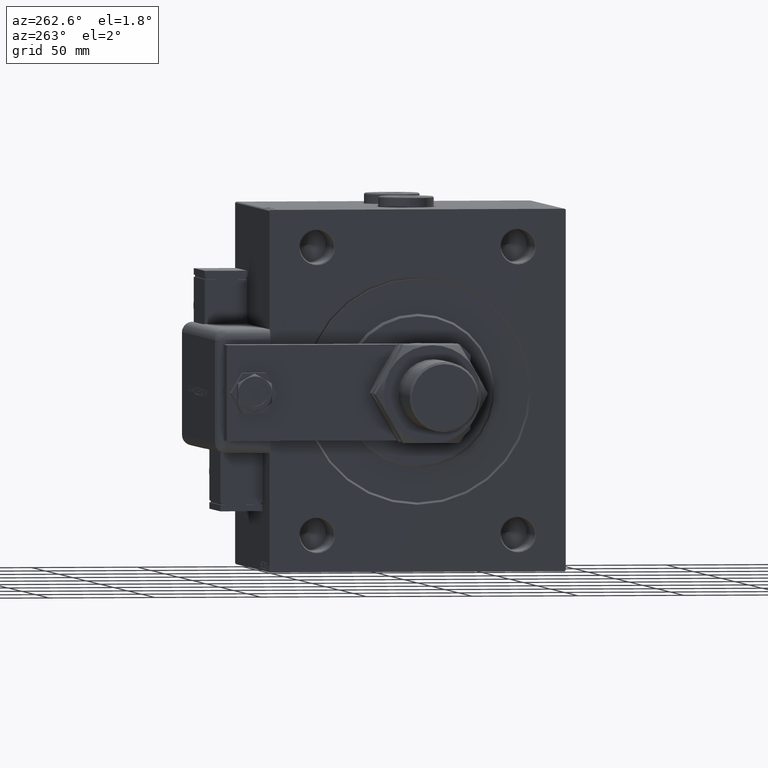
[diagram: clean part render]
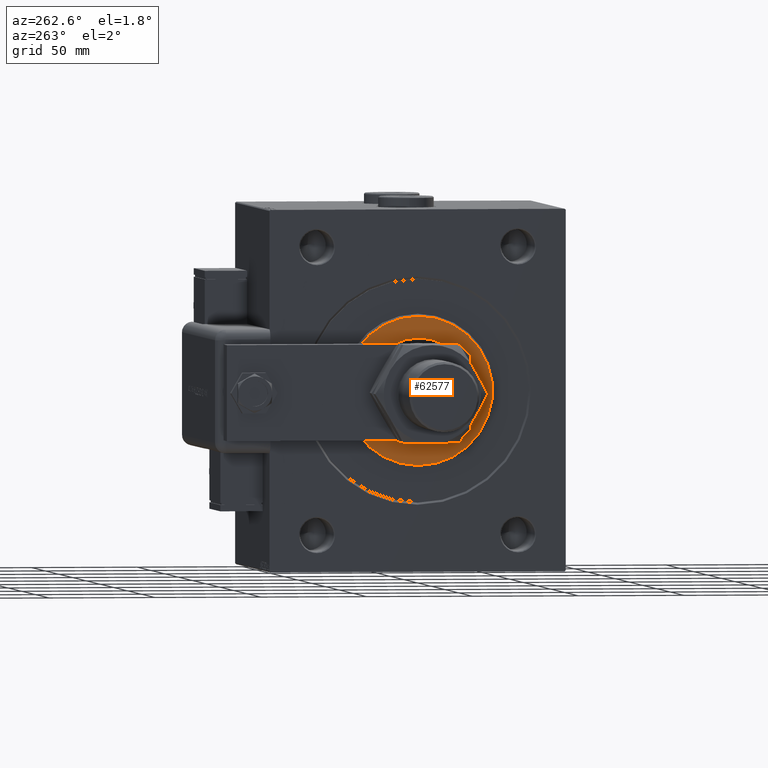
[diagram: same view with one face highlighted and labeled with its STEP entity id]
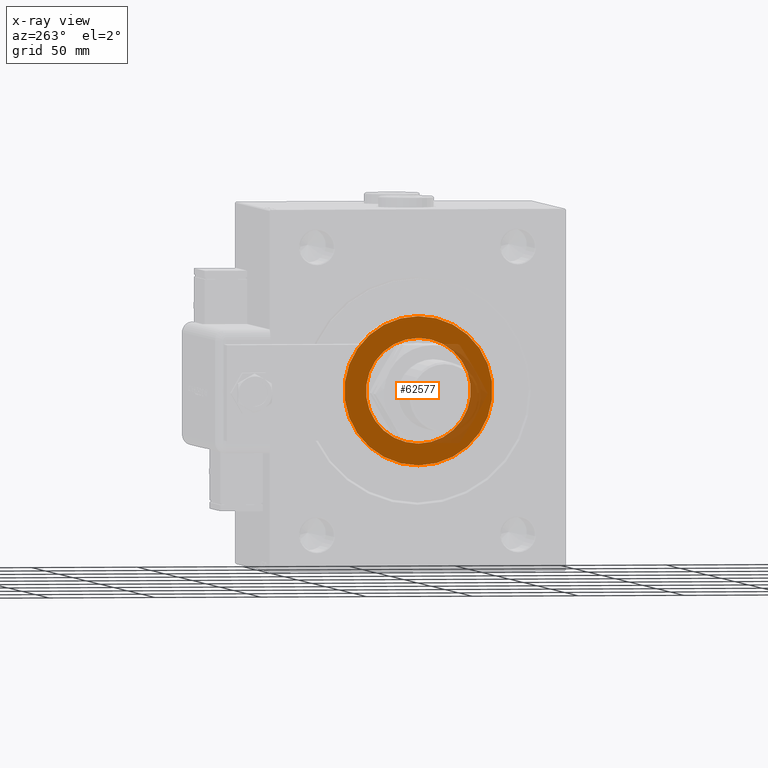
[diagram: x-ray of the same camera — body ghosted, the highlighted face saturated]
A machine part, auxiliary view. The second image highlights one B-rep face of the part: STEP entity #62577.
The next image is the same camera in x-ray: the body ghosted, the highlighted face saturated — about 15% of this face is hidden behind the body in this view.
In plain terms, the highlighted planar face has unit normal (-1, 0, 0).
Its self-contained STEP definition (entity closure, byte-faithful):
#2847 = VERTEX_POINT ( 'NONE', #5366 ) ;
#3115 = CARTESIAN_POINT ( 'NONE',  ( 3.000000000000000000, 0.000000000000000000, 0.000000000000000000 ) ) ;
#3332 = ORIENTED_EDGE ( 'NONE', *, *, #53833, .F. ) ;
#3453 = AXIS2_PLACEMENT_3D ( 'NONE', #34462, #15400, #16026 ) ;
#5124 = CARTESIAN_POINT ( 'NONE',  ( 3.000000000000000000, 3.031000827889699650E-15, 24.75000000000000355 ) ) ;
#5366 = CARTESIAN_POINT ( 'NONE',  ( 3.000000000000000000, 0.000000000000000000, 35.00000000000001421 ) ) ;
#5540 = AXIS2_PLACEMENT_3D ( 'NONE', #3115, #50501, #42214 ) ;
#10603 = VERTEX_POINT ( 'NONE', #5124 ) ;
#11687 = CARTESIAN_POINT ( 'NONE',  ( 3.000000000000000000, 4.347496136973104859E-15, -35.00000000000001421 ) ) ;
#13180 = VERTEX_POINT ( 'NONE', #50265 ) ;
#13632 = ORIENTED_EDGE ( 'NONE', *, *, #19092, .T. ) ;
#15400 = DIRECTION ( 'NONE',  ( 1.000000000000000000, 0.000000000000000000, 0.000000000000000000 ) ) ;
#16026 = DIRECTION ( 'NONE',  ( 0.000000000000000000, 0.000000000000000000, -1.000000000000000000 ) ) ;
#17931 = DIRECTION ( 'NONE',  ( 1.000000000000000000, -0.000000000000000000, 0.000000000000000000 ) ) ;
#18144 = AXIS2_PLACEMENT_3D ( 'NONE', #50585, #45831, #21650 ) ;
#19092 = EDGE_CURVE ( 'NONE', #2847, #44984, #21642, .T. ) ;
#21136 = AXIS2_PLACEMENT_3D ( 'NONE', #56298, #51822, #32120 ) ;
#21642 = CIRCLE ( 'NONE', #5540, 35.00000000000001421 ) ;
#21650 = DIRECTION ( 'NONE',  ( 0.000000000000000000, 0.000000000000000000, -1.000000000000000000 ) ) ;
#27529 = ORIENTED_EDGE ( 'NONE', *, *, #38582, .F. ) ;
#32120 = DIRECTION ( 'NONE',  ( 0.000000000000000000, 0.000000000000000000, -1.000000000000000000 ) ) ;
#33903 = EDGE_CURVE ( 'NONE', #44984, #2847, #48527, .T. ) ;
#34462 = CARTESIAN_POINT ( 'NONE',  ( 3.000000000000000000, 0.000000000000000000, 0.000000000000000000 ) ) ;
#37334 = FACE_BOUND ( 'NONE', #55882, .T. ) ;
#38582 = EDGE_CURVE ( 'NONE', #10603, #13180, #43041, .T. ) ;
#41484 = FACE_OUTER_BOUND ( 'NONE', #54869, .T. ) ;
#42106 = PLANE ( 'NONE',  #44920 ) ;
#42214 = DIRECTION ( 'NONE',  ( 0.000000000000000000, 0.000000000000000000, -1.000000000000000000 ) ) ;
#43041 = CIRCLE ( 'NONE', #3453, 24.75000000000000355 ) ;
#44920 = AXIS2_PLACEMENT_3D ( 'NONE', #61534, #17931, #56749 ) ;
#44984 = VERTEX_POINT ( 'NONE', #11687 ) ;
#45831 = DIRECTION ( 'NONE',  ( 1.000000000000000000, 0.000000000000000000, 0.000000000000000000 ) ) ;
#48527 = CIRCLE ( 'NONE', #21136, 35.00000000000001421 ) ;
#50265 = CARTESIAN_POINT ( 'NONE',  ( 3.000000000000000000, 0.000000000000000000, -24.75000000000000355 ) ) ;
#50501 = DIRECTION ( 'NONE',  ( 1.000000000000000000, -0.000000000000000000, 0.000000000000000000 ) ) ;
#50585 = CARTESIAN_POINT ( 'NONE',  ( 3.000000000000000000, 0.000000000000000000, 0.000000000000000000 ) ) ;
#51822 = DIRECTION ( 'NONE',  ( 1.000000000000000000, -0.000000000000000000, 0.000000000000000000 ) ) ;
#53833 = EDGE_CURVE ( 'NONE', #13180, #10603, #54726, .T. ) ;
#54726 = CIRCLE ( 'NONE', #18144, 24.75000000000000355 ) ;
#54869 = EDGE_LOOP ( 'NONE', ( #13632, #55180 ) ) ;
#55180 = ORIENTED_EDGE ( 'NONE', *, *, #33903, .T. ) ;
#55882 = EDGE_LOOP ( 'NONE', ( #3332, #27529 ) ) ;
#56298 = CARTESIAN_POINT ( 'NONE',  ( 3.000000000000000000, 0.000000000000000000, 0.000000000000000000 ) ) ;
#56749 = DIRECTION ( 'NONE',  ( 0.000000000000000000, 0.000000000000000000, -1.000000000000000000 ) ) ;
#61534 = CARTESIAN_POINT ( 'NONE',  ( 3.000000000000000000, 0.000000000000000000, 0.000000000000000000 ) ) ;
#62577 = ADVANCED_FACE ( 'NONE', ( #41484, #37334 ), #42106, .T. ) ;